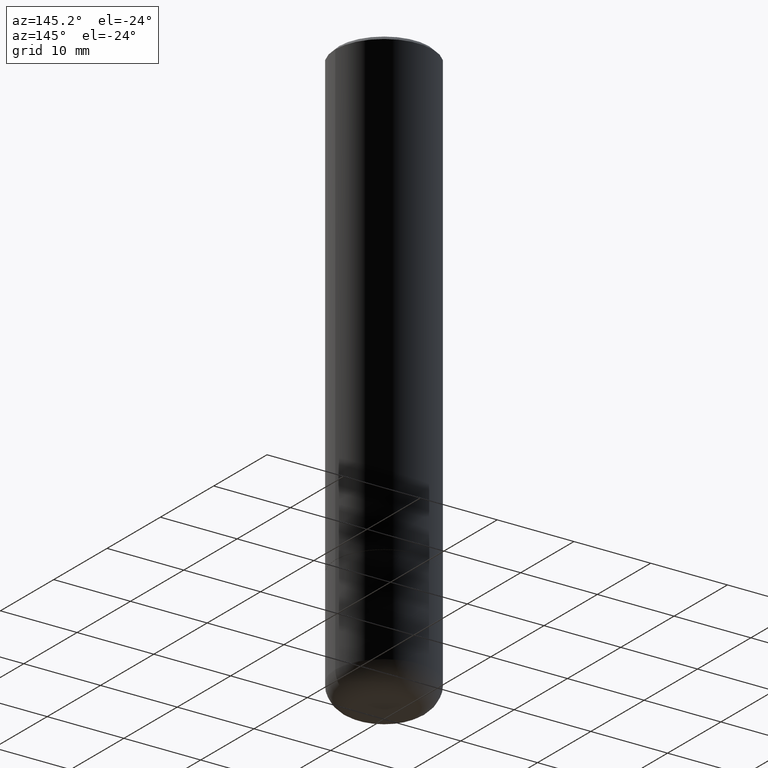
[diagram: clean part render]
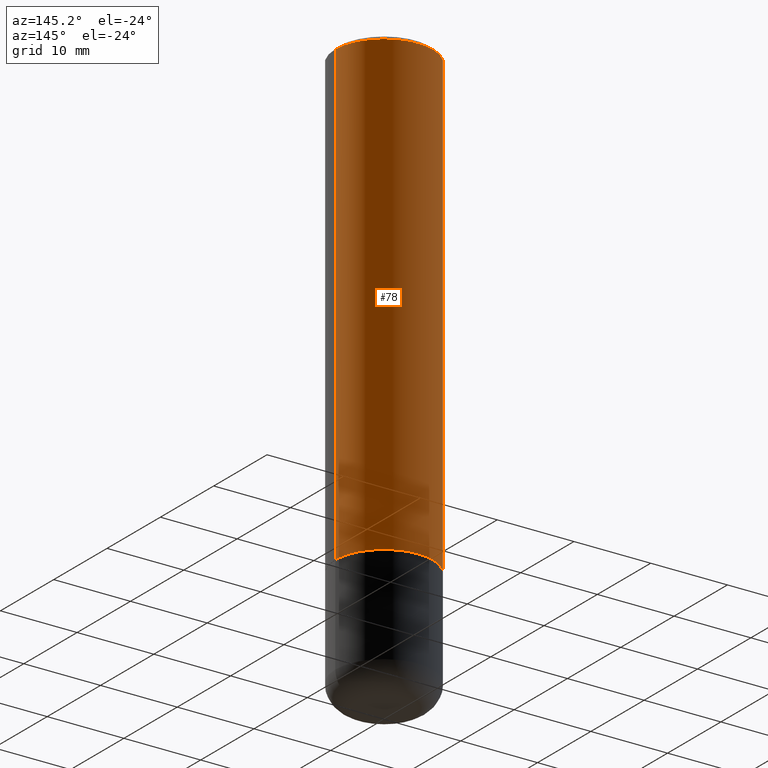
[diagram: same view with one face highlighted and labeled with its STEP entity id]
A machine part, auxiliary view. The second image highlights one B-rep face of the part: STEP entity #78.
In plain terms, the highlighted cylindrical surface (partial cylindrical patch) has radius 6.35 mm, axis along (-0, 0, 1).
Its self-contained STEP definition (entity closure, byte-faithful):
#10 = EDGE_CURVE ( 'NONE', #380, #77, #42, .T. ) ;
#18 = CIRCLE ( 'NONE', #140, 0.2499999999999995837 ) ;
#30 = ORIENTED_EDGE ( 'NONE', *, *, #345, .F. ) ;
#42 = LINE ( 'NONE', #417, #216 ) ;
#45 = AXIS2_PLACEMENT_3D ( 'NONE', #85, #241, #360 ) ;
#73 = CARTESIAN_POINT ( 'NONE',  ( 0.2499999999999993061, -1.784954126219741456E-15, -0.02000000000000010797 ) ) ;
#75 = CARTESIAN_POINT ( 'NONE',  ( 5.805542945883514935E-29, -8.288776698413628688E-15, -2.374000000000000110 ) ) ;
#77 = VERTEX_POINT ( 'NONE', #73 ) ;
#78 = ADVANCED_FACE ( 'NONE', ( #195 ), #91, .T. ) ;
#85 = CARTESIAN_POINT ( 'NONE',  ( 0.000000000000000000, 0.000000000000000000, 0.000000000000000000 ) ) ;
#91 = CYLINDRICAL_SURFACE ( 'NONE', #45, 0.2499999999999994449 ) ;
#140 = AXIS2_PLACEMENT_3D ( 'NONE', #75, #452, #272 ) ;
#159 = VECTOR ( 'NONE', #296, 39.37007874015748143 ) ;
#195 = FACE_OUTER_BOUND ( 'NONE', #482, .T. ) ;
#216 = VECTOR ( 'NONE', #339, 39.37007874015748143 ) ;
#223 = ORIENTED_EDGE ( 'NONE', *, *, #10, .F. ) ;
#232 = CIRCLE ( 'NONE', #367, 0.2499999999999993061 ) ;
#235 = VERTEX_POINT ( 'NONE', #247 ) ;
#241 = DIRECTION ( 'NONE',  ( -2.445468806185136597E-29, 3.491481338843145583E-15, 1.000000000000000000 ) ) ;
#247 = CARTESIAN_POINT ( 'NONE',  ( -0.2499999999999993061, 1.675911042644698449E-15, -0.02000000000000010797 ) ) ;
#258 = CARTESIAN_POINT ( 'NONE',  ( 4.890937612370299433E-31, -6.982962677686328587E-17, -0.02000000000000010797 ) ) ;
#260 = LINE ( 'NONE', #444, #159 ) ;
#272 = DIRECTION ( 'NONE',  ( 1.000000000000000000, -6.982962677686270655E-15, 0.000000000000000000 ) ) ;
#296 = DIRECTION ( 'NONE',  ( -2.445468806185136877E-29, 3.491481338843145188E-15, 1.000000000000000000 ) ) ;
#298 = DIRECTION ( 'NONE',  ( -2.445468806185136597E-29, 3.491481338843145583E-15, 1.000000000000000000 ) ) ;
#312 = EDGE_CURVE ( 'NONE', #455, #235, #260, .T. ) ;
#329 = ORIENTED_EDGE ( 'NONE', *, *, #312, .T. ) ;
#339 = DIRECTION ( 'NONE',  ( -2.445468806185136877E-29, 3.491481338843145188E-15, 1.000000000000000000 ) ) ;
#341 = CARTESIAN_POINT ( 'NONE',  ( -0.2499999999999995559, -2.402946323194996317E-15, -2.374000000000000110 ) ) ;
#345 = EDGE_CURVE ( 'NONE', #77, #235, #232, .T. ) ;
#360 = DIRECTION ( 'NONE',  ( 1.000000000000000000, -6.982962677686266711E-15, 4.876176775795935232E-29 ) ) ;
#363 = ORIENTED_EDGE ( 'NONE', *, *, #479, .T. ) ;
#365 = CARTESIAN_POINT ( 'NONE',  ( 0.2499999999999995837, -1.003451736783519379E-14, -2.374000000000000110 ) ) ;
#367 = AXIS2_PLACEMENT_3D ( 'NONE', #258, #298, #371 ) ;
#371 = DIRECTION ( 'NONE',  ( 1.000000000000000000, -6.982962677686267499E-15, 0.000000000000000000 ) ) ;
#380 = VERTEX_POINT ( 'NONE', #365 ) ;
#417 = CARTESIAN_POINT ( 'NONE',  ( 0.2499999999999994449, -1.745740669421562733E-15, 1.219044193948981146E-29 ) ) ;
#444 = CARTESIAN_POINT ( 'NONE',  ( -0.2499999999999994449, 1.776356839400246520E-15, -1.229733772563723783E-29 ) ) ;
#452 = DIRECTION ( 'NONE',  ( -2.445468806185136597E-29, 3.491481338843145583E-15, 1.000000000000000000 ) ) ;
#455 = VERTEX_POINT ( 'NONE', #341 ) ;
#479 = EDGE_CURVE ( 'NONE', #380, #455, #18, .T. ) ;
#482 = EDGE_LOOP ( 'NONE', ( #363, #329, #30, #223 ) ) ;